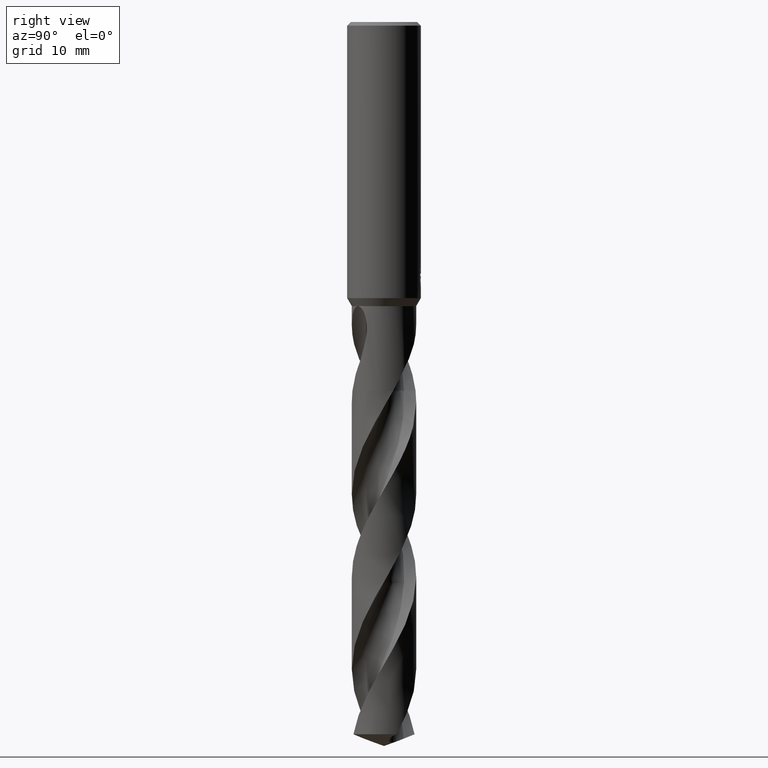
[diagram: clean part render]
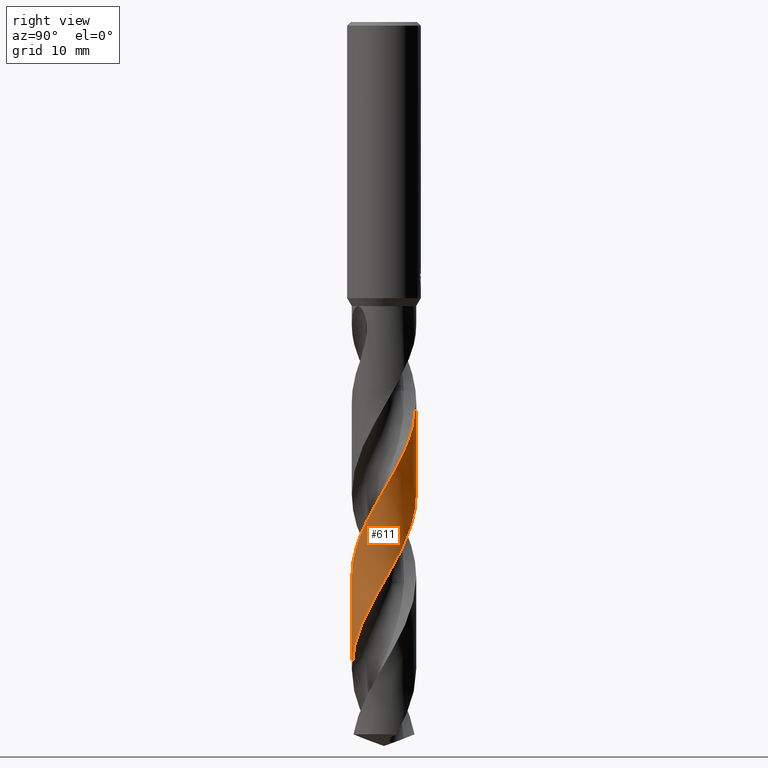
[diagram: same view with one face highlighted and labeled with its STEP entity id]
A machine part, right view. The second image highlights one B-rep face of the part: STEP entity #611.
In plain terms, the highlighted conical surface has half-angle 0 deg.
Its self-contained STEP definition (entity closure, byte-faithful):
#315=EDGE_CURVE('',#599,#421,#872,.T.);
#421=VERTEX_POINT('',#990);
#493=EDGE_CURVE('',#691,#767,#1066,.T.);
#599=VERTEX_POINT('',#1182);
#611=ADVANCED_FACE('',(#1194),#1195,.T.);
#653=EDGE_CURVE('',#691,#421,#1241,.T.);
#691=VERTEX_POINT('',#1282);
#749=EDGE_CURVE('',#599,#767,#1345,.T.);
#767=VERTEX_POINT('',#1364);
#872=B_SPLINE_CURVE_WITH_KNOTS('',3,(#1479,#1480,#1481,#1482,#1483,#1484,#1485,#1486,#1487,#1488,#1489,#1490,#1491,#1492,#1493,#1494,#1495,#1496,#1497,#1498,#1499,#1500,#1501,#1502,#1503,#1504,#1505,#1506,#1507,#1508,#1509,#1510,#1511,#1512,#1513,#1514,#1515,#1516,#1517,#1518,#1519,#1520,#1521,#1522,#1523,#1524,#1525,#1526,#1527,#1528,#1529,#1530,#1531,#1532,#1533,#1534,#1535,#1536,#1537,#1538,#1539,#1540,#1541,#1542),.UNSPECIFIED.,.F.,.F.,(4,2,2,2,2,2,2,2,2,2,2,2,2,2,2,2,2,2,2,2,2,2,2,2,2,2,2,2,2,2,2,4),(0.0,0.133614309053159,6.947047606834,7.01043589031789,10.1596415145816,12.4900220220781,15.8006035883681,16.5198988402468,19.9965442720657,22.0001956566345,24.0337318888463,26.1665653882187,28.9980808228495,31.2685795355509,33.3044559428812,36.161056537466,38.7329111018574,39.5016257764641,43.1078530316749,44.1985793364627,46.2545513277273,47.2744237563938,49.2897238244068,51.7474840672492,54.0519275921716,56.8122949888454,57.846501237301,59.6675398299275,59.752785181565,62.4442945586902,63.7882086446928,65.1254882091745),.UNSPECIFIED.);
#990=CARTESIAN_POINT('',(-6.70451843091417E-013,5.24993013062096,-76.9698804554667));
#1066=B_SPLINE_CURVE_WITH_KNOTS('',3,(#4270,#4271,#4272,#4273,#4274,#4275,#4276,#4277,#4278,#4279,#4280,#4281,#4282,#4283,#4284,#4285,#4286,#4287,#4288,#4289,#4290,#4291,#4292,#4293,#4294,#4295,#4296,#4297,#4298,#4299,#4300,#4301,#4302,#4303,#4304,#4305,#4306,#4307,#4308,#4309,#4310,#4311,#4312,#4313,#4314,#4315,#4316,#4317,#4318,#4319,#4320,#4321,#4322,#4323,#4324,#4325,#4326,#4327,#4328,#4329,#4330,#4331,#4332,#4333,#4334,#4335,#4336,#4337,#4338,#4339,#4340,#4341,#4342,#4343),.UNSPECIFIED.,.F.,.F.,(4,2,2,2,2,2,2,2,2,2,2,2,2,2,2,2,2,2,2,2,2,2,2,2,2,2,2,2,2,2,2,2,2,2,2,2,4),(0.0,2.54047131449813,3.50044940706205,5.41581494924477,5.51130516666848,7.07432774951799,8.02535364321968,10.4241811678733,14.4905961102342,18.5947523863624,20.6236054654033,21.9832312747462,24.1075747763209,25.1268001239752,26.480556497629,28.5998536840516,32.0152387401748,34.6366637155742,35.8674921510403,38.7552224526503,40.0899791251008,42.4411691849065,43.4587177437936,44.8027606284073,46.9296050140113,47.9476423830897,49.2368458162637,52.2802878279404,53.8126135889414,56.1305731694062,60.4297657595829,61.5002411863092,63.1076737523334,63.9108904380349,64.3123519475589,64.5129513138187,64.7134291890293),.UNSPECIFIED.);
#1182=CARTESIAN_POINT('',(1.05357392981089E-014,-5.2499810812337,-105.496698643417));
#1194=FACE_OUTER_BOUND('',#6278,.T.);
#1195=CONICAL_SURFACE('',#6279,5.24995,1.78606013488114E-006);
#1241=LINE('',#6488,#6489);
#1282=CARTESIAN_POINT('',(-2.98575904294831E-015,5.2499032840348,-61.9387033770496));
#1345=LINE('',#7733,#7734);
#1364=CARTESIAN_POINT('',(1.60126328733719E-012,-5.24995423434483,-90.4653520764757));
#1479=CARTESIAN_POINT('',(-4.82547408562634,-2.06816339996352,-116.089156270102));
#1480=CARTESIAN_POINT('',(-4.81672880563249,-2.08856786120338,-116.05054512327));
#1481=CARTESIAN_POINT('',(-4.80788304211385,-2.10885057791293,-116.012011264179));
#1482=CARTESIAN_POINT('',(-4.34038929822407,-3.16254256765086,-114.00628168191));
#1483=CARTESIAN_POINT('',(-3.55927839899706,-4.0214587484569,-112.115938517468));
#1484=CARTESIAN_POINT('',(-2.56474596113029,-4.58089260596421,-110.13202583022));
#1485=CARTESIAN_POINT('',(-2.55557705306627,-4.58601402987907,-110.113760761673));
#1486=CARTESIAN_POINT('',(-2.0890134466397,-4.84478214678042,-109.186222803655));
#1487=CARTESIAN_POINT('',(-1.59541204385531,-5.02924377218944,-108.292113821885));
#1488=CARTESIAN_POINT('',(-0.700433677915788,-5.21756676819313,-106.714626558666));
#1489=CARTESIAN_POINT('',(-0.313130523145715,-5.25492809021645,-106.039015607267));
#1490=CARTESIAN_POINT('',(0.624303800217869,-5.24168545230853,-104.415305651876));
#1491=CARTESIAN_POINT('',(1.16900722508522,-5.14751598506397,-103.480291840405));
#1492=CARTESIAN_POINT('',(1.80159969760462,-4.93261600990255,-102.320191702492));
#1493=CARTESIAN_POINT('',(1.91291358891115,-4.89052233116246,-102.112705656789));
#1494=CARTESIAN_POINT('',(2.55457511515442,-4.62258729508006,-100.904805999601));
#1495=CARTESIAN_POINT('',(3.04627067710778,-4.31455920598659,-99.9244350422312));
#1496=CARTESIAN_POINT('',(3.72757104270702,-3.7118702984879,-98.3496508954433));
#1497=CARTESIAN_POINT('',(3.95527363170038,-3.46829588151631,-97.7699053527652));
#1498=CARTESIAN_POINT('',(4.36519473614972,-2.93626601754719,-96.6092492473044));
#1499=CARTESIAN_POINT('',(4.54534280797358,-2.64888512746343,-96.0288708663596));
#1500=CARTESIAN_POINT('',(4.85529214143599,-2.02837754497103,-94.8316589048572));
#1501=CARTESIAN_POINT('',(4.98096803836649,-1.69623636892718,-94.2148284737755));
#1502=CARTESIAN_POINT('',(5.19341389221064,-0.900625230554157,-92.7886552713995));
#1503=CARTESIAN_POINT('',(5.25316528409195,-0.432609781670017,-91.986440405305));
#1504=CARTESIAN_POINT('',(5.24714261514264,0.414148006654752,-90.5219254249875));
#1505=CARTESIAN_POINT('',(5.20395607725204,0.789477265478358,-89.8656879172835));
#1506=CARTESIAN_POINT('',(5.04612746735392,1.48764694306495,-88.6293613207936));
#1507=CARTESIAN_POINT('',(4.93978595412084,1.80969354189861,-88.0490846781227));
#1508=CARTESIAN_POINT('',(4.61152467344617,2.5536672512468,-86.6447867069188));
#1509=CARTESIAN_POINT('',(4.36199697399897,2.9598557716772,-85.8195556615525));
#1510=CARTESIAN_POINT('',(3.78962924403319,3.65836942930772,-84.2616390723343));
#1511=CARTESIAN_POINT('',(3.47972512627041,3.95405242563857,-83.5315206775795));
#1512=CARTESIAN_POINT('',(3.03658705182309,4.28452939874721,-82.5712074256115));
#1513=CARTESIAN_POINT('',(2.93206302978339,4.35673104918181,-82.3497057884547));
#1514=CARTESIAN_POINT('',(2.32087137480646,4.74685420194347,-81.0906843887604));
#1515=CARTESIAN_POINT('',(1.76607779340564,4.97996972040743,-80.0757682036314));
#1516=CARTESIAN_POINT('',(1.00758250704121,5.15550802175568,-78.7258464609713));
#1517=CARTESIAN_POINT('',(0.82987996137321,5.18707215909191,-78.4111720819138));
#1518=CARTESIAN_POINT('',(0.31280554610403,5.2516518867719,-77.5069708099643));
#1519=CARTESIAN_POINT('',(-0.0291049581139657,5.26098691672402,-76.9205760622712));
#1520=CARTESIAN_POINT('',(-0.53970045173501,5.22487113932323,-76.0385319432969));
#1521=CARTESIAN_POINT('',(-0.708110081672116,5.20470806465986,-75.7464957021363));
#1522=CARTESIAN_POINT('',(-1.20490401510566,5.12072766920645,-74.8753858030773));
#1523=CARTESIAN_POINT('',(-1.52810465183988,5.0337295819215,-74.2932337147845));
#1524=CARTESIAN_POINT('',(-2.22316893021659,4.77341848132082,-73.0094533535949));
#1525=CARTESIAN_POINT('',(-2.58711485567066,4.58638509403293,-72.3115105146328));
#1526=CARTESIAN_POINT('',(-3.24340876397704,4.1458715855776,-70.9454597615708));
#1527=CARTESIAN_POINT('',(-3.53626158268543,3.89906715600075,-70.2797077087911));
#1528=CARTESIAN_POINT('',(-4.11614671464514,3.29070893662133,-68.8268443061405));
#1529=CARTESIAN_POINT('',(-4.38722688034868,2.91945181262183,-68.0451937468307));
#1530=CARTESIAN_POINT('',(-4.68889942678136,2.36752803338064,-66.956791736318));
#1531=CARTESIAN_POINT('',(-4.76352659841618,2.21350562754976,-66.6592160389183));
#1532=CARTESIAN_POINT('',(-4.94836413910205,1.77928198690901,-65.8407919047473));
#1533=CARTESIAN_POINT('',(-5.04226667648663,1.49260373222012,-65.3218268071548));
#1534=CARTESIAN_POINT('',(-5.11431241723572,1.18555687388948,-64.7757024367254));
#1535=CARTESIAN_POINT('',(-5.1174812758991,1.17180295094543,-64.7512654100342));
#1536=CARTESIAN_POINT('',(-5.2189727877261,0.723017805588229,-63.9547299720723));
#1537=CARTESIAN_POINT('',(-5.26159754311857,0.276840477953552,-63.1870261306319));
#1538=CARTESIAN_POINT('',(-5.23995568562571,-0.392555236635982,-62.0298884664794));
#1539=CARTESIAN_POINT('',(-5.21856147223638,-0.614391904212119,-61.6459152822113));
#1540=CARTESIAN_POINT('',(-5.14814776229124,-1.05210981614838,-60.876177488728));
#1541=CARTESIAN_POINT('',(-5.09925695808255,-1.26825424018063,-60.4892531490352));
#1542=CARTESIAN_POINT('',(-5.03651195196867,-1.48155238064644,-60.1047417004308));
#4270=CARTESIAN_POINT('',(-1.05350008433381,5.14311069709876,-60.1032156011559));
#4271=CARTESIAN_POINT('',(-0.637838844983538,5.22825489256354,-60.8360775936598));
#4272=CARTESIAN_POINT('',(-0.213648793817985,5.26264511737389,-61.568791009171));
#4273=CARTESIAN_POINT('',(0.369820383711915,5.23931049971192,-62.5788438135145));
#4274=CARTESIAN_POINT('',(0.529468307136249,5.22559371823229,-62.8553355482783));
#4275=CARTESIAN_POINT('',(1.00516699267826,5.16268583986795,-63.6848113775353));
#4276=CARTESIAN_POINT('',(1.31746525099358,5.09194071036715,-64.2364293499462));
#4277=CARTESIAN_POINT('',(1.63644665377772,4.98836991922031,-64.8166491173359));
#4278=CARTESIAN_POINT('',(1.65157171525107,4.98338273499204,-64.8442023468855));
#4279=CARTESIAN_POINT('',(1.91387053854659,4.89556968055882,-65.3227600527712));
#4280=CARTESIAN_POINT('',(2.15462316016116,4.79449464015613,-65.7731762279294));
#4281=CARTESIAN_POINT('',(2.52826276719566,4.60376375167107,-66.4984784176114));
#4282=CARTESIAN_POINT('',(2.66620736973235,4.52526993103082,-66.7724776044205));
#4283=CARTESIAN_POINT('',(3.13874786124542,4.22727993103506,-67.7392006169049));
#4284=CARTESIAN_POINT('',(3.45180322093225,3.97579645181369,-68.4306052994244));
#4285=CARTESIAN_POINT('',(4.2104705668059,3.20845855405698,-70.2962633318196));
#4286=CARTESIAN_POINT('',(4.58943476646122,2.63794839797784,-71.4589205688904));
#4287=CARTESIAN_POINT('',(5.11157911630564,1.37915377100459,-73.8172595770833));
#4288=CARTESIAN_POINT('',(5.24763099235251,0.701668973079969,-74.9879970474292));
#4289=CARTESIAN_POINT('',(5.25102151577681,-0.320875366030927,-76.7582727798249));
#4290=CARTESIAN_POINT('',(5.21944916106228,-0.658707287342181,-77.3421589755373));
#4291=CARTESIAN_POINT('',(5.1126037767452,-1.21433831179743,-78.3196956117051));
#4292=CARTESIAN_POINT('',(5.05535243755271,-1.43409258345407,-78.7111394927867));
#4293=CARTESIAN_POINT('',(4.87282109719968,-1.9856833952664,-79.716863565392));
#4294=CARTESIAN_POINT('',(4.72770775457238,-2.3100488811829,-80.3294570101723));
#4295=CARTESIAN_POINT('',(4.46612437108945,-2.76487225892025,-81.2367878457987));
#4296=CARTESIAN_POINT('',(4.374165878436,-2.90817891928553,-81.5306845911526));
#4297=CARTESIAN_POINT('',(4.14414785264136,-3.23094858028897,-82.2154315057552));
#4298=CARTESIAN_POINT('',(4.00126839172647,-3.40627757820119,-82.6052289888089));
#4299=CARTESIAN_POINT('',(3.60708170784053,-3.83090728270174,-83.608023302162));
#4300=CARTESIAN_POINT('',(3.34088007952035,-4.06516859266674,-84.2193906388395));
#4301=CARTESIAN_POINT('',(2.58921940308282,-4.60249577352915,-85.8173197236214));
#4302=CARTESIAN_POINT('',(2.07463947178124,-4.85616153723231,-86.7951029548044));
#4303=CARTESIAN_POINT('',(1.1114816996917,-5.14953858708637,-88.5385428953017));
#4304=CARTESIAN_POINT('',(0.678626490706889,-5.22429401256532,-89.2919233117695));
#4305=CARTESIAN_POINT('',(0.0357533119072455,-5.25385761671749,-90.4037435902892));
#4306=CARTESIAN_POINT('',(-0.169848650081108,-5.25122109554291,-90.7586485600533));
#4307=CARTESIAN_POINT('',(-0.855053744991647,-5.20220400191365,-91.9480592712616));
#4308=CARTESIAN_POINT('',(-1.32891227181528,-5.10184558247569,-92.7786914226263));
#4309=CARTESIAN_POINT('',(-1.99246499289953,-4.86229365708227,-93.9975256497238));
#4310=CARTESIAN_POINT('',(-2.19703316763764,-4.77333838119514,-94.3819565880217));
#4311=CARTESIAN_POINT('',(-2.74442767254166,-4.49268296954952,-95.4465228790618));
#4312=CARTESIAN_POINT('',(-3.07260427984907,-4.27497956996325,-96.1247723520926));
#4313=CARTESIAN_POINT('',(-3.5037336187496,-3.91342306860381,-97.0976467368778));
#4314=CARTESIAN_POINT('',(-3.62861805190889,-3.79792068191768,-97.3912216920692));
#4315=CARTESIAN_POINT('',(-3.90501873658029,-3.5161696393959,-98.0730887853907));
#4316=CARTESIAN_POINT('',(-4.05174399762475,-3.34602170276595,-98.4604275032316));
#4317=CARTESIAN_POINT('',(-4.40121559834271,-2.88400711577126,-99.4632416865793));
#4318=CARTESIAN_POINT('',(-4.58620212151318,-2.57976416670149,-100.077028905943));
#4319=CARTESIAN_POINT('',(-4.81226354786522,-2.105530435612,-100.985499230238));
#4320=CARTESIAN_POINT('',(-4.87796387009469,-1.94849983206303,-101.279298266597));
#4321=CARTESIAN_POINT('',(-5.00935635003272,-1.58588379622995,-101.945640407378));
#4322=CARTESIAN_POINT('',(-5.07017781165634,-1.37908545844086,-102.317241326205));
#4323=CARTESIAN_POINT('',(-5.23129752838006,-0.6738189807585,-103.569257531726));
#4324=CARTESIAN_POINT('',(-5.27203188955338,-0.164161696673022,-104.44554160911));
#4325=CARTESIAN_POINT('',(-5.22194969647355,0.599333205739938,-105.767425912979));
#4326=CARTESIAN_POINT('',(-5.18650204339909,0.853222929024502,-106.208841255423));
#4327=CARTESIAN_POINT('',(-5.05137054735381,1.48183114147135,-107.321903917477));
#4328=CARTESIAN_POINT('',(-4.92836489238354,1.85031464674416,-107.991303191992));
#4329=CARTESIAN_POINT('',(-4.46448077663525,2.85431817956595,-109.904046034614));
#4330=CARTESIAN_POINT('',(-4.03237580277352,3.43781275430611,-111.132205134491));
#4331=CARTESIAN_POINT('',(-3.36297210073801,4.03545023087649,-112.684593190829));
#4332=CARTESIAN_POINT('',(-3.22352038819878,4.14769341217314,-112.993968284453));
#4333=CARTESIAN_POINT('',(-2.86102337359918,4.4101203358633,-113.768176010517));
#4334=CARTESIAN_POINT('',(-2.63162285440757,4.55074042671799,-114.232169886123));
#4335=CARTESIAN_POINT('',(-2.27289864495411,4.73438914562427,-114.929018244232));
#4336=CARTESIAN_POINT('',(-2.15105428161286,4.79097988309998,-115.161095763506));
#4337=CARTESIAN_POINT('',(-1.96523141239827,4.86876384371672,-115.509301331109));
#4338=CARTESIAN_POINT('',(-1.90281389555019,4.89349541496756,-115.625325320489));
#4339=CARTESIAN_POINT('',(-1.80852230838908,4.92877944825967,-115.799347240494));
#4340=CARTESIAN_POINT('',(-1.77699443210277,4.9402339557646,-115.857327564389));
#4341=CARTESIAN_POINT('',(-1.7137444479779,4.96252975086007,-115.973258612639));
#4342=CARTESIAN_POINT('',(-1.68202498980315,4.97337049746098,-116.031197014404));
#4343=CARTESIAN_POINT('',(-1.6502086773576,4.98390522794862,-116.089156270102));
#6278=EDGE_LOOP('',(#9606,#9607,#9608,#9609));
#6279=AXIS2_PLACEMENT_3D('',#9610,#9611,#9612);
#6488=CARTESIAN_POINT('',(-6.42453288562643E-016,5.24995,-88.0945781350512));
#6489=VECTOR('',#9656,1.0);
#7733=CARTESIAN_POINT('',(6.43371136887315E-016,-5.24995,-88.0945781350512));
#7734=VECTOR('',#9738,1.0);
#9606=ORIENTED_EDGE('',*,*,#653,.F.);
#9607=ORIENTED_EDGE('',*,*,#493,.T.);
#9608=ORIENTED_EDGE('',*,*,#749,.F.);
#9609=ORIENTED_EDGE('',*,*,#315,.T.);
#9610=CARTESIAN_POINT('',(0.0,0.0,-88.0945781350512));
#9611=DIRECTION('',(0.0,-0.0,-1.0));
#9612=DIRECTION('',(0.0,1.0,0.0));
#9656=DIRECTION('',(-2.18722058948314E-022,1.78606013488019E-006,-0.999999999998405));
#9738=DIRECTION('',(-2.18722058948314E-022,1.78606013488019E-006,0.999999999998405));